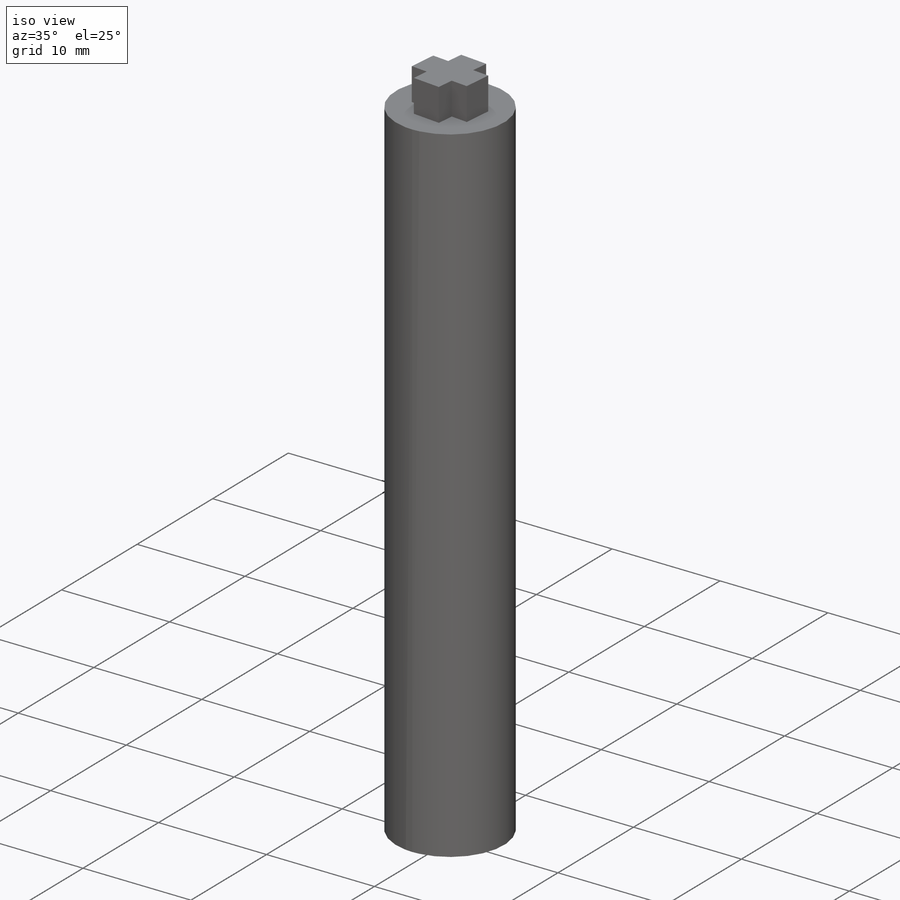
[diagram: iso view]
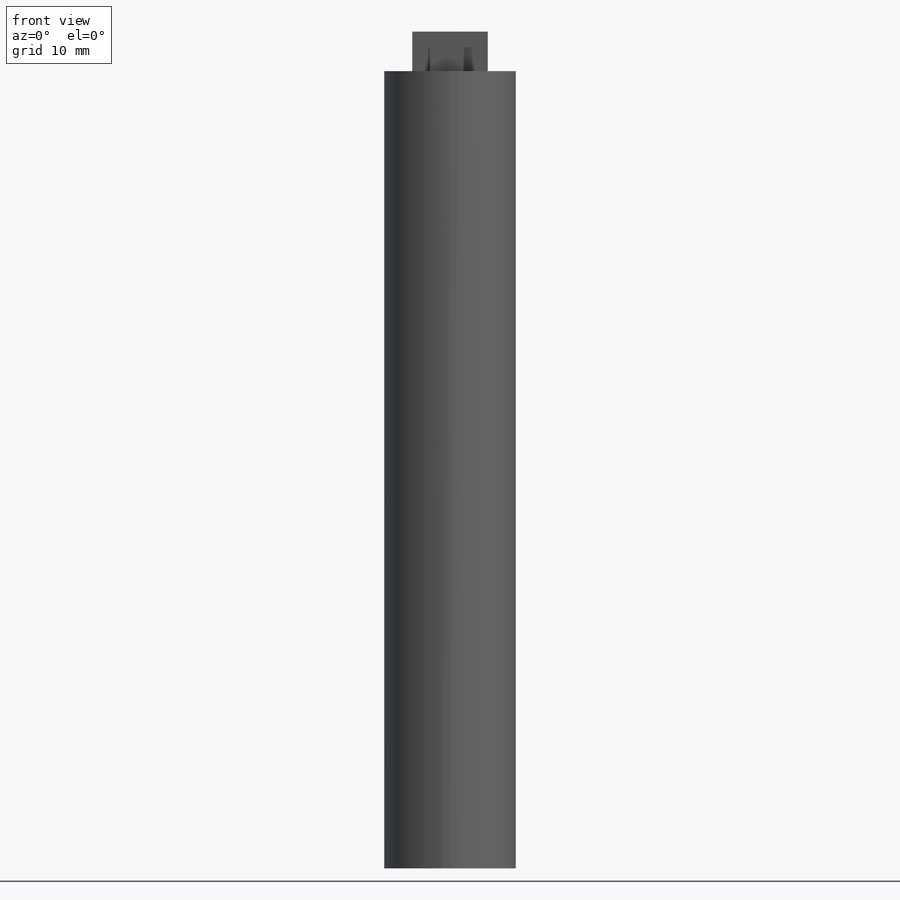
[diagram: front view]
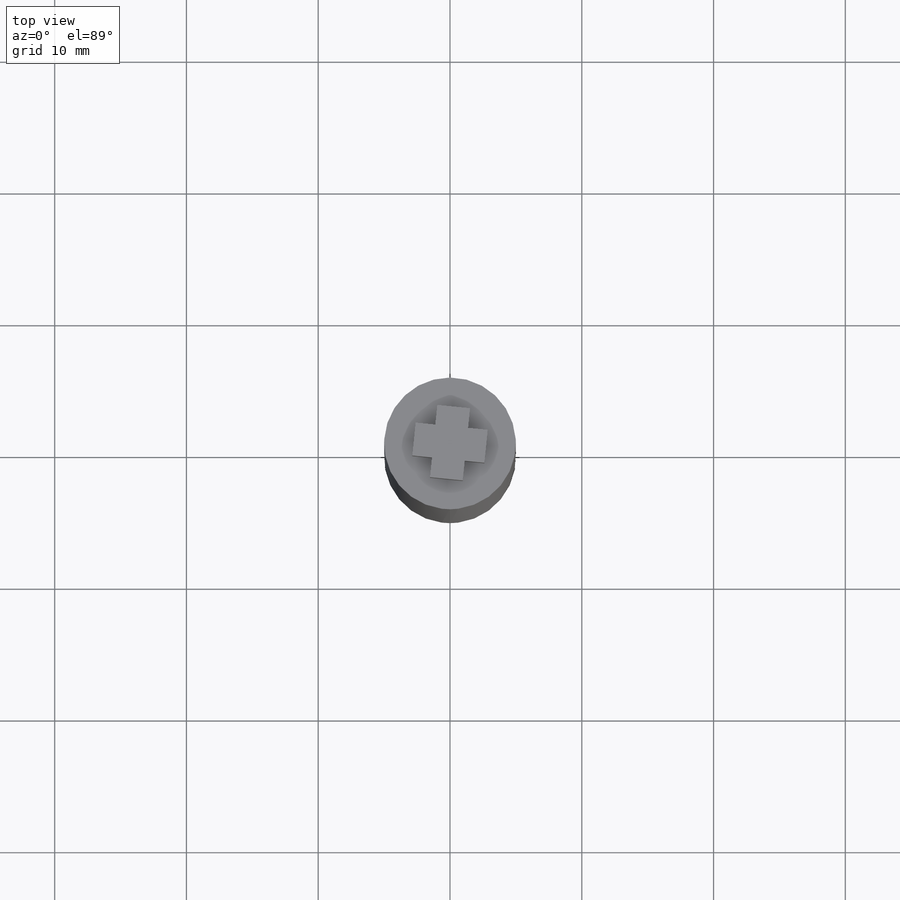
[diagram: top view]
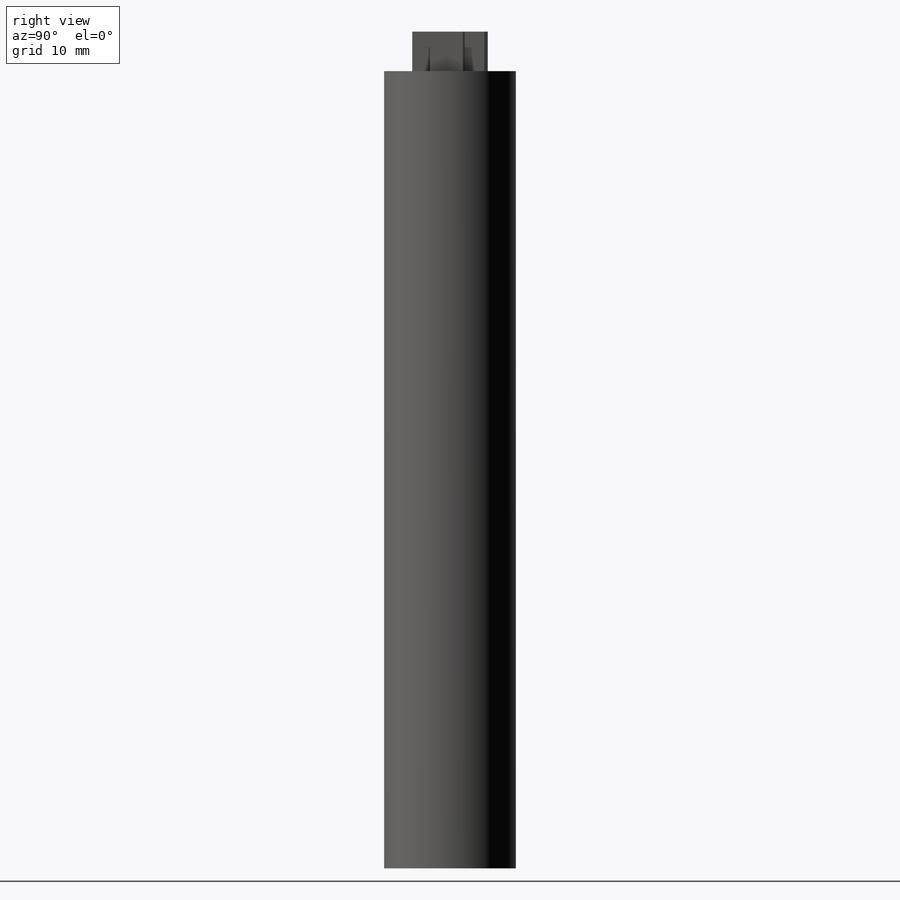
[diagram: right view]
SOLIDWORKS PART (.sldprt)
format: sldprt  version: not decoded by parser v0  size: 399,872 bytes
history: native  units: mm
features: sketch x16, extrude x6, cut_extrude x6, plane x3, material x1, sweep x1 (+9 scaffold rows collapsed)
feature tree (42):
  scaffold x9  (default folders/planes/origin — collapsed)
  material  "材质 <未指定>"
  plane  "前视基准面"
  plane  "上视基准面"
  plane  "右视基准面"
  sketch  "草图1"  dims[D1=10.0mm D2=5.45mm]
  extrude  "凸台-拉伸1"  Depth=2mm
  sketch  "草图2"  dims[D1=3.0mm D2=6.0mm D3=3.0mm D4=1.5mm]
  extrude  "凸台-拉伸2"  Depth=3.5mm
  sketch  "草图3"  dims[D1=1.5mm D2=1.5mm D3=1.5mm D4=1.5mm]
  extrude  "凸台-拉伸3"  Depth=3.5mm
  sketch  "草图4"
  extrude  "凸台-拉伸4"  Depth=0.5mm
  sketch  "草图5"  dims[c1.D1=0.25mm c1.D2=0.25mm c1.D3=0.25mm c1.D4=~0.251255mm c2.D1=0.25mm c2.D2=0.25mm c2.D3=0.25mm c2.D4=1.25mm c2.D5=1.25mm c2.D6=0.25mm c2.D7=0.25mm c2.D8=4.0]
  cut_extrude  "切除-拉伸2"  Depth=3mm
  sketch  "草图6"  dims[D1=5.5mm]
  cut_extrude  "切除-拉伸3"  Depth=2mm
  sketch  "草图7"
  extrude  "凸台-拉伸5"  Depth=58mm
  sketch  "草图8"
  extrude  "凸台-拉伸6"  Depth=58mm
  sketch  "草图9"
  cut_extrude  "切除-拉伸4"  Depth=8mm
  sketch  "草图10"  dims[D1=3.0mm]
  cut_extrude  "切除-拉伸5"  Depth=15mm
  sketch  "草图11"  dims[D1=7.0mm]
  cut_extrude  "切除-拉伸6"  Depth=30mm
  sketch  "草图12"  dims[D1=2.0mm]
  cut_extrude  "切除-拉伸7"  Depth=7mm
  sketch  "草图13"  dims[D1=7.0mm]
  sketch  "草图14"
  sketch  "草图15"
  sketch  "草图16"
  sweep  "切除-扫描1"
decode coverage: 21 of 29 modeling features carry decoded parameters
note: ~ marks probable driven/reference dimensions
note: suppression state not decoded; provenance and decode notes live in map.json
